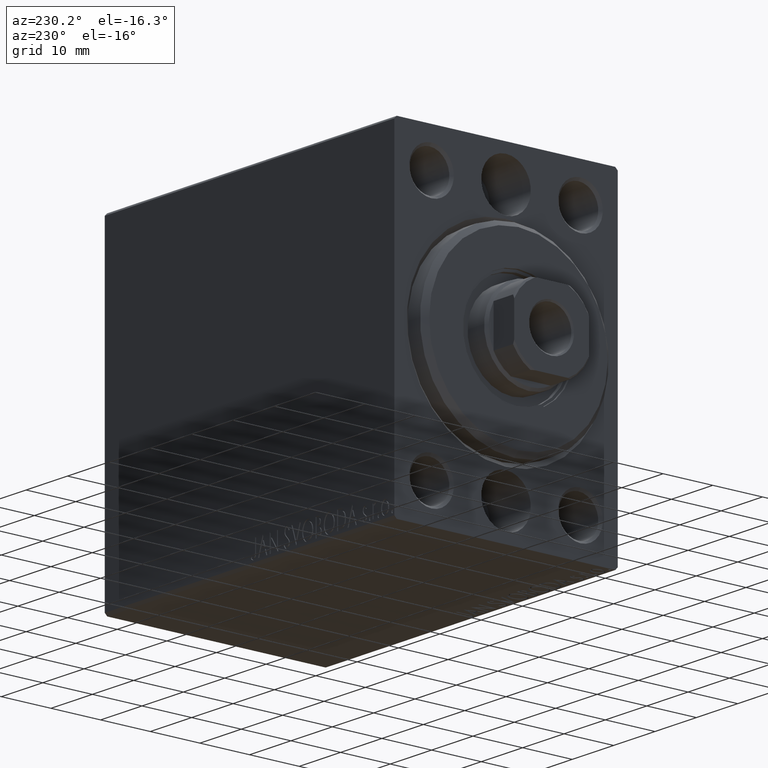
[diagram: clean part render]
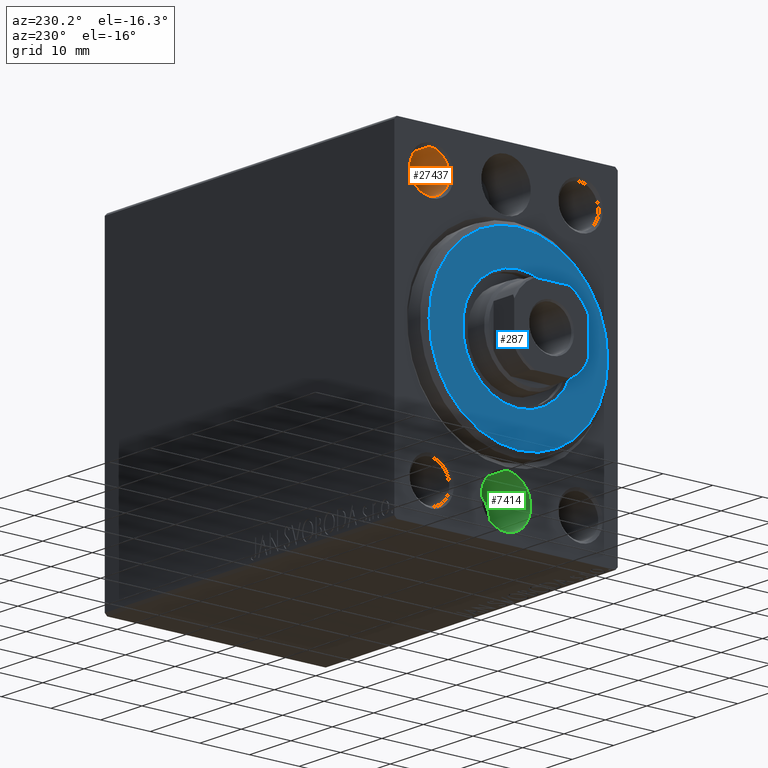
[diagram: same view with three faces highlighted in distinct colors, each labeled with its STEP entity id]
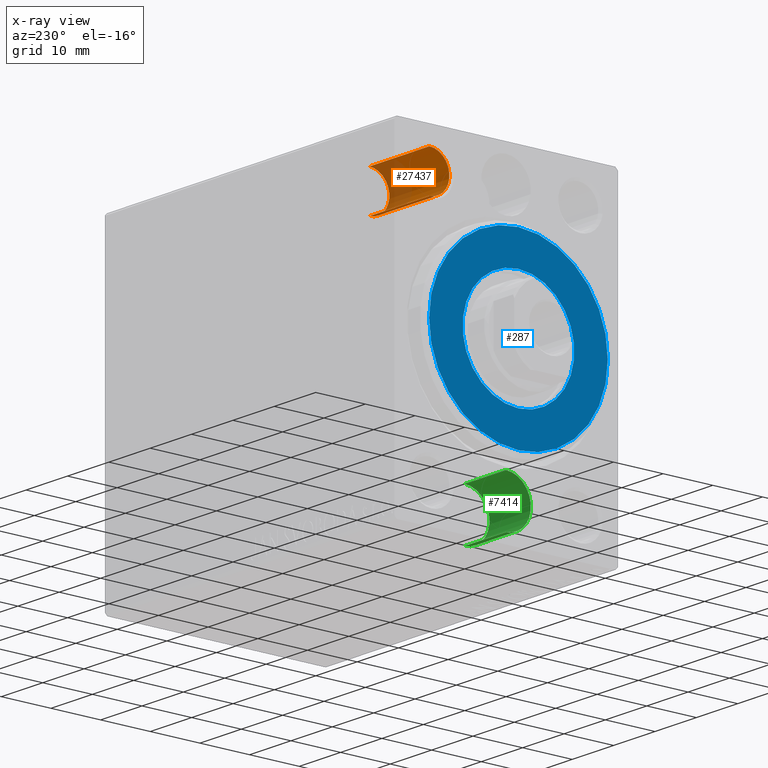
[diagram: x-ray of the same camera — body ghosted, the three highlighted faces saturated]
A machine part, auxiliary view with three faces highlighted in distinct colors.
The next image is the same camera in x-ray (body ghosted, the three faces saturated) — at least one of them is partly hidden behind the body in this view.
Their STEP definitions:

[orange] entity #27437 — the highlighted cylindrical surface (edge-blend (fillet) strip) has radius 4 mm, axis along (-1, -0, -0).
#114 = DIRECTION ( 'NONE',  ( -1.000000000000000000, -0.000000000000000000, -0.000000000000000000 ) ) ;
#1733 = LINE ( 'NONE', #28944, #38403 ) ;
#3026 = ORIENTED_EDGE ( 'NONE', *, *, #9514, .T. ) ;
#3842 = VERTEX_POINT ( 'NONE', #15919 ) ;
#3924 = VERTEX_POINT ( 'NONE', #37313 ) ;
#4774 = CARTESIAN_POINT ( 'NONE',  ( 15.00000000000000000, 15.00000000000000178, 25.00000000000000000 ) ) ;
#8390 = CARTESIAN_POINT ( 'NONE',  ( 0.000000000000000000, 15.00000000000000178, 25.00000000000000000 ) ) ;
#9045 = DIRECTION ( 'NONE',  ( 0.000000000000000000, 0.000000000000000000, 1.000000000000000000 ) ) ;
#9155 = AXIS2_PLACEMENT_3D ( 'NONE', #4774, #32190, #39541 ) ;
#9514 = EDGE_CURVE ( 'NONE', #3924, #21635, #1733, .T. ) ;
#12391 = FACE_OUTER_BOUND ( 'NONE', #20749, .T. ) ;
#13201 = CARTESIAN_POINT ( 'NONE',  ( 0.4999999999999900080, 15.00000000000000178, 21.00000000000000000 ) ) ;
#14142 = CARTESIAN_POINT ( 'NONE',  ( 0.4999999999999900080, 15.00000000000000178, 25.00000000000000000 ) ) ;
#14379 = EDGE_CURVE ( 'NONE', #21635, #27930, #43017, .T. ) ;
#15144 = DIRECTION ( 'NONE',  ( -1.000000000000000000, -0.000000000000000000, -0.000000000000000000 ) ) ;
#15919 = CARTESIAN_POINT ( 'NONE',  ( 15.00000000000000000, 15.00000000000000178, 28.99999999999999645 ) ) ;
#18431 = AXIS2_PLACEMENT_3D ( 'NONE', #8390, #22002, #9045 ) ;
#18831 = ORIENTED_EDGE ( 'NONE', *, *, #26735, .F. ) ;
#20749 = EDGE_LOOP ( 'NONE', ( #18831, #3026, #35843, #24595 ) ) ;
#21635 = VERTEX_POINT ( 'NONE', #13201 ) ;
#22002 = DIRECTION ( 'NONE',  ( -1.000000000000000000, -0.000000000000000000, -0.000000000000000000 ) ) ;
#23773 = LINE ( 'NONE', #37373, #26405 ) ;
#23962 = DIRECTION ( 'NONE',  ( 0.000000000000000000, 0.000000000000000000, -1.000000000000000000 ) ) ;
#24595 = ORIENTED_EDGE ( 'NONE', *, *, #37181, .F. ) ;
#25239 = AXIS2_PLACEMENT_3D ( 'NONE', #14142, #30423, #23962 ) ;
#25999 = CYLINDRICAL_SURFACE ( 'NONE', #18431, 4.000000000000000000 ) ;
#26405 = VECTOR ( 'NONE', #114, 1000.000000000000000 ) ;
#26735 = EDGE_CURVE ( 'NONE', #3924, #3842, #43343, .T. ) ;
#27437 = ADVANCED_FACE ( 'NONE', ( #12391 ), #25999, .F. ) ;
#27930 = VERTEX_POINT ( 'NONE', #43049 ) ;
#28944 = CARTESIAN_POINT ( 'NONE',  ( 0.000000000000000000, 15.00000000000000178, 21.00000000000000000 ) ) ;
#30423 = DIRECTION ( 'NONE',  ( -1.000000000000000000, 0.000000000000000000, 0.000000000000000000 ) ) ;
#32190 = DIRECTION ( 'NONE',  ( -1.000000000000000000, -0.000000000000000000, -0.000000000000000000 ) ) ;
#35843 = ORIENTED_EDGE ( 'NONE', *, *, #14379, .T. ) ;
#37181 = EDGE_CURVE ( 'NONE', #3842, #27930, #23773, .T. ) ;
#37313 = CARTESIAN_POINT ( 'NONE',  ( 15.00000000000000000, 15.00000000000000178, 21.00000000000000355 ) ) ;
#37373 = CARTESIAN_POINT ( 'NONE',  ( 0.000000000000000000, 15.00000000000000178, 29.00000000000000000 ) ) ;
#38403 = VECTOR ( 'NONE', #15144, 1000.000000000000000 ) ;
#39541 = DIRECTION ( 'NONE',  ( 0.000000000000000000, 0.000000000000000000, 1.000000000000000000 ) ) ;
#43017 = CIRCLE ( 'NONE', #25239, 4.000000000000000000 ) ;
#43049 = CARTESIAN_POINT ( 'NONE',  ( 0.4999999999999900080, 15.00000000000000178, 29.00000000000000000 ) ) ;
#43343 = CIRCLE ( 'NONE', #9155, 3.999999999999996447 ) ;

[blue] entity #287 — the highlighted planar face has unit normal (-1, 0, 0).
#287 = ADVANCED_FACE ( 'NONE', ( #14321, #20574 ), #24577, .T. ) ;
#773 = AXIS2_PLACEMENT_3D ( 'NONE', #5221, #38467, #11914 ) ;
#1120 = VERTEX_POINT ( 'NONE', #18057 ) ;
#4435 = DIRECTION ( 'NONE',  ( 1.000000000000000000, 0.000000000000000000, 0.000000000000000000 ) ) ;
#5221 = CARTESIAN_POINT ( 'NONE',  ( 3.000000000000000000, 0.000000000000000000, 0.000000000000000000 ) ) ;
#6699 = VERTEX_POINT ( 'NONE', #21468 ) ;
#9323 = DIRECTION ( 'NONE',  ( 1.000000000000000000, 0.000000000000000000, 0.000000000000000000 ) ) ;
#10411 = EDGE_LOOP ( 'NONE', ( #32097, #15084 ) ) ;
#10464 = DIRECTION ( 'NONE',  ( 0.000000000000000000, 0.000000000000000000, -1.000000000000000000 ) ) ;
#11914 = DIRECTION ( 'NONE',  ( 0.000000000000000000, 0.000000000000000000, -1.000000000000000000 ) ) ;
#13737 = AXIS2_PLACEMENT_3D ( 'NONE', #29145, #4435, #42530 ) ;
#13804 = CARTESIAN_POINT ( 'NONE',  ( 3.000000000000000000, 0.000000000000000000, 0.000000000000000000 ) ) ;
#14321 = FACE_OUTER_BOUND ( 'NONE', #23447, .T. ) ;
#14441 = CIRCLE ( 'NONE', #13737, 11.25000000000000178 ) ;
#15084 = ORIENTED_EDGE ( 'NONE', *, *, #31617, .F. ) ;
#15527 = AXIS2_PLACEMENT_3D ( 'NONE', #13804, #27403, #10464 ) ;
#18057 = CARTESIAN_POINT ( 'NONE',  ( 3.000000000000000000, 1.377727649040772586E-15, 11.25000000000000178 ) ) ;
#18458 = AXIS2_PLACEMENT_3D ( 'NONE', #39875, #9323, #37853 ) ;
#19889 = CIRCLE ( 'NONE', #18458, 11.25000000000000178 ) ;
#20022 = CIRCLE ( 'NONE', #773, 17.99999999999999645 ) ;
#20574 = FACE_BOUND ( 'NONE', #10411, .T. ) ;
#20808 = VERTEX_POINT ( 'NONE', #24611 ) ;
#21468 = CARTESIAN_POINT ( 'NONE',  ( 3.000000000000000000, 0.000000000000000000, 17.99999999999999645 ) ) ;
#23447 = EDGE_LOOP ( 'NONE', ( #41464, #34456 ) ) ;
#24137 = DIRECTION ( 'NONE',  ( 0.000000000000000000, 0.000000000000000000, -1.000000000000000000 ) ) ;
#24577 = PLANE ( 'NONE',  #43965 ) ;
#24611 = CARTESIAN_POINT ( 'NONE',  ( 3.000000000000000000, 0.000000000000000000, -11.25000000000000178 ) ) ;
#25139 = EDGE_CURVE ( 'NONE', #27398, #6699, #34752, .T. ) ;
#27398 = VERTEX_POINT ( 'NONE', #36031 ) ;
#27403 = DIRECTION ( 'NONE',  ( 1.000000000000000000, -0.000000000000000000, 0.000000000000000000 ) ) ;
#29145 = CARTESIAN_POINT ( 'NONE',  ( 3.000000000000000000, 0.000000000000000000, 0.000000000000000000 ) ) ;
#31617 = EDGE_CURVE ( 'NONE', #1120, #20808, #19889, .T. ) ;
#31693 = DIRECTION ( 'NONE',  ( 1.000000000000000000, -0.000000000000000000, 0.000000000000000000 ) ) ;
#32097 = ORIENTED_EDGE ( 'NONE', *, *, #43043, .F. ) ;
#34456 = ORIENTED_EDGE ( 'NONE', *, *, #25139, .T. ) ;
#34752 = CIRCLE ( 'NONE', #15527, 17.99999999999999645 ) ;
#34829 = CARTESIAN_POINT ( 'NONE',  ( 3.000000000000000000, 0.000000000000000000, 0.000000000000000000 ) ) ;
#36031 = CARTESIAN_POINT ( 'NONE',  ( 3.000000000000000000, 2.265596578422603002E-15, -17.99999999999999645 ) ) ;
#37266 = EDGE_CURVE ( 'NONE', #6699, #27398, #20022, .T. ) ;
#37853 = DIRECTION ( 'NONE',  ( 0.000000000000000000, 0.000000000000000000, -1.000000000000000000 ) ) ;
#38467 = DIRECTION ( 'NONE',  ( 1.000000000000000000, -0.000000000000000000, 0.000000000000000000 ) ) ;
#39875 = CARTESIAN_POINT ( 'NONE',  ( 3.000000000000000000, 0.000000000000000000, 0.000000000000000000 ) ) ;
#41464 = ORIENTED_EDGE ( 'NONE', *, *, #37266, .T. ) ;
#42530 = DIRECTION ( 'NONE',  ( 0.000000000000000000, 0.000000000000000000, -1.000000000000000000 ) ) ;
#43043 = EDGE_CURVE ( 'NONE', #20808, #1120, #14441, .T. ) ;
#43965 = AXIS2_PLACEMENT_3D ( 'NONE', #34829, #31693, #24137 ) ;

[green] entity #7414 — the highlighted cylindrical surface (edge-blend (fillet) strip) has radius 5 mm, axis along (-1, -0, -0).
#618 = CARTESIAN_POINT ( 'NONE',  ( 10.00000000000000000, 6.123233995736766282E-16, -30.50000000000000000 ) ) ;
#1465 = CARTESIAN_POINT ( 'NONE',  ( 10.00000000000000000, 0.000000000000000000, -25.50000000000000000 ) ) ;
#1716 = CYLINDRICAL_SURFACE ( 'NONE', #29054, 5.000000000000000888 ) ;
#2465 = VECTOR ( 'NONE', #41340, 1000.000000000000000 ) ;
#2942 = EDGE_LOOP ( 'NONE', ( #24132, #42794, #25437, #33493 ) ) ;
#3904 = DIRECTION ( 'NONE',  ( 0.000000000000000000, 0.000000000000000000, 1.000000000000000000 ) ) ;
#3980 = LINE ( 'NONE', #618, #18335 ) ;
#5623 = CIRCLE ( 'NONE', #7055, 5.000000000000000888 ) ;
#6993 = CIRCLE ( 'NONE', #28352, 5.000000000000000888 ) ;
#7055 = AXIS2_PLACEMENT_3D ( 'NONE', #13499, #24416, #3904 ) ;
#7227 = LINE ( 'NONE', #13915, #2465 ) ;
#7414 = ADVANCED_FACE ( 'NONE', ( #36066 ), #1716, .F. ) ;
#10051 = CARTESIAN_POINT ( 'NONE',  ( 10.00000000000000000, 6.123233995736765296E-16, -30.50000000000000000 ) ) ;
#11848 = EDGE_CURVE ( 'NONE', #43333, #23673, #7227, .T. ) ;
#13499 = CARTESIAN_POINT ( 'NONE',  ( 0.000000000000000000, 0.000000000000000000, -25.50000000000000000 ) ) ;
#13915 = CARTESIAN_POINT ( 'NONE',  ( 10.00000000000000000, 0.000000000000000000, -20.49999999999999645 ) ) ;
#14236 = DIRECTION ( 'NONE',  ( -1.000000000000000000, -0.000000000000000000, -0.000000000000000000 ) ) ;
#18335 = VECTOR ( 'NONE', #14236, 1000.000000000000000 ) ;
#19349 = DIRECTION ( 'NONE',  ( 0.000000000000000000, 0.000000000000000000, 1.000000000000000000 ) ) ;
#19564 = DIRECTION ( 'NONE',  ( -1.000000000000000000, -0.000000000000000000, -0.000000000000000000 ) ) ;
#20224 = CARTESIAN_POINT ( 'NONE',  ( 10.00000000000000000, 0.000000000000000000, -20.49999999999999645 ) ) ;
#21761 = VERTEX_POINT ( 'NONE', #31028 ) ;
#23518 = EDGE_CURVE ( 'NONE', #36546, #21761, #3980, .T. ) ;
#23673 = VERTEX_POINT ( 'NONE', #42518 ) ;
#24132 = ORIENTED_EDGE ( 'NONE', *, *, #26445, .F. ) ;
#24416 = DIRECTION ( 'NONE',  ( -1.000000000000000000, 0.000000000000000000, 0.000000000000000000 ) ) ;
#25437 = ORIENTED_EDGE ( 'NONE', *, *, #31873, .T. ) ;
#26445 = EDGE_CURVE ( 'NONE', #36546, #43333, #6993, .T. ) ;
#28352 = AXIS2_PLACEMENT_3D ( 'NONE', #1465, #29549, #32242 ) ;
#29054 = AXIS2_PLACEMENT_3D ( 'NONE', #29152, #19564, #19349 ) ;
#29152 = CARTESIAN_POINT ( 'NONE',  ( 10.00000000000000000, 0.000000000000000000, -25.50000000000000000 ) ) ;
#29549 = DIRECTION ( 'NONE',  ( -1.000000000000000000, 0.000000000000000000, 0.000000000000000000 ) ) ;
#31028 = CARTESIAN_POINT ( 'NONE',  ( 0.000000000000000000, 6.123233995736765296E-16, -30.50000000000000000 ) ) ;
#31873 = EDGE_CURVE ( 'NONE', #21761, #23673, #5623, .T. ) ;
#32242 = DIRECTION ( 'NONE',  ( 0.000000000000000000, 0.000000000000000000, 1.000000000000000000 ) ) ;
#33493 = ORIENTED_EDGE ( 'NONE', *, *, #11848, .F. ) ;
#36066 = FACE_OUTER_BOUND ( 'NONE', #2942, .T. ) ;
#36546 = VERTEX_POINT ( 'NONE', #10051 ) ;
#41340 = DIRECTION ( 'NONE',  ( -1.000000000000000000, -0.000000000000000000, -0.000000000000000000 ) ) ;
#42518 = CARTESIAN_POINT ( 'NONE',  ( 0.000000000000000000, 0.000000000000000000, -20.49999999999999645 ) ) ;
#42794 = ORIENTED_EDGE ( 'NONE', *, *, #23518, .T. ) ;
#43333 = VERTEX_POINT ( 'NONE', #20224 ) ;